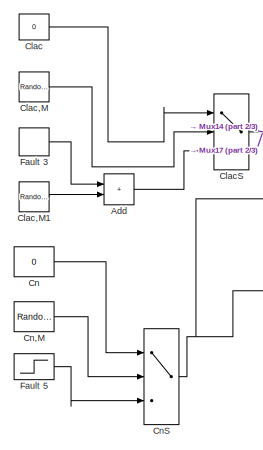
[diagram: root canvas - part 1/3, middle left region]
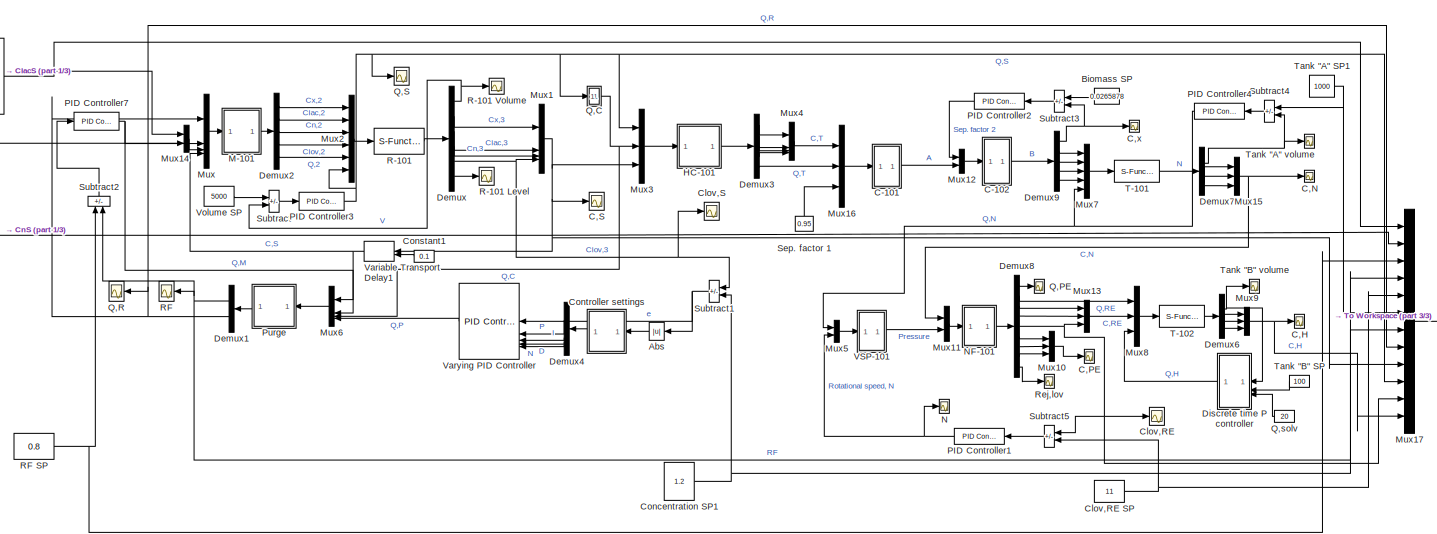
[diagram: root canvas - part 2/3, most of the canvas]
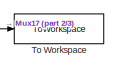
[diagram: root canvas - part 3/3, middle right region]
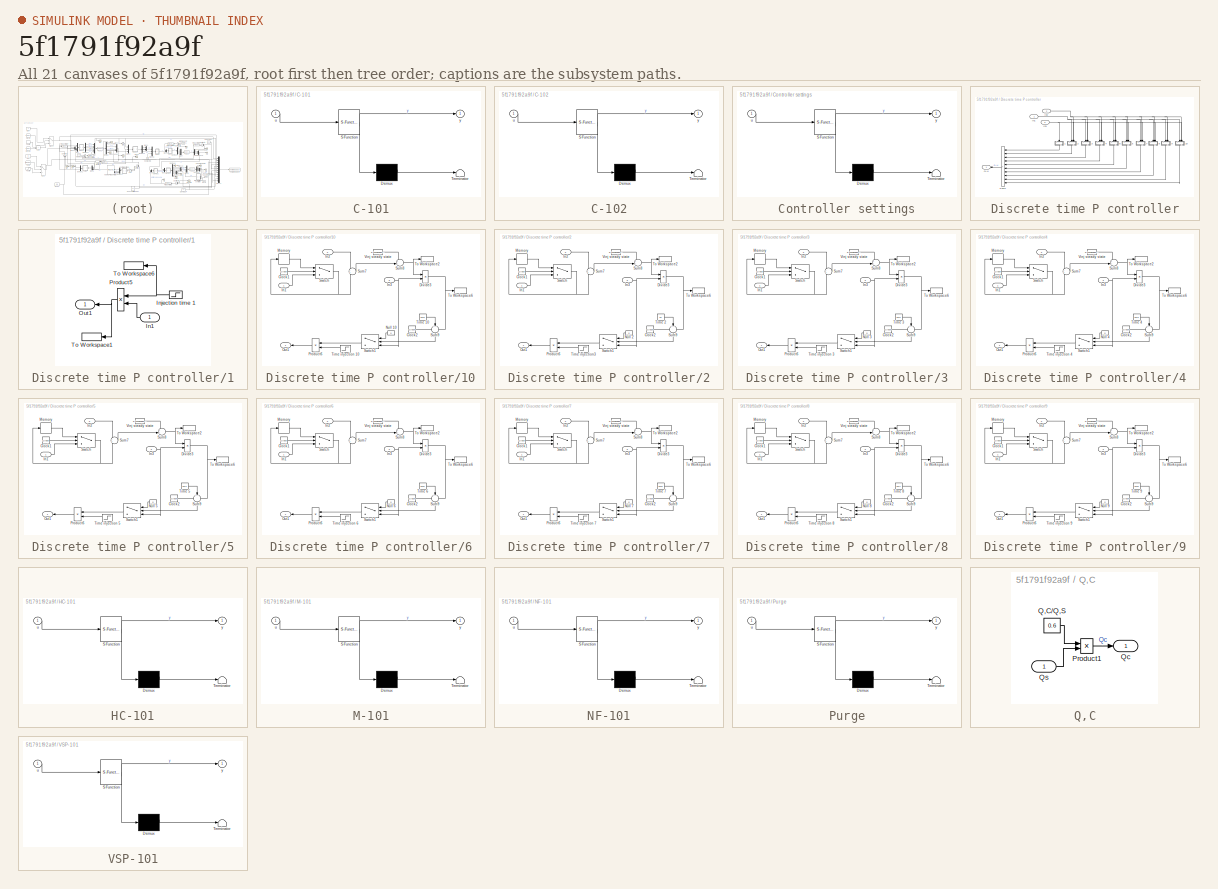
[diagram: thumbnail index - all 21 canvases of the model, root first then tree order]
MODEL slx_5f1791f92a9f
KIND model
CONFIG AbsTol = auto
CONFIG EnableMultiTasking = off
CONFIG FixedStep = auto
CONFIG MaxStep = auto
CONFIG MinStep = auto
CONFIG RelTol = 1e-3
CONFIG SampleTimeConstraint = Unconstrained
CONFIG SolverName = ode45
CONFIG StartTime = 0.0
CONFIG StopTime = 2000
BLOCK [Abs] Abs
  NameLocation = top
  SaturateOnIntegerOverflow = off
BLOCK [Sum] Add
  IconShape = rectangular
BLOCK [Constant] Biomass SP
  NameLocation = top
  Value = 0.0265878
BLOCK [Scope] C,H
  Floating = off
  NumInputPorts = 1
  ScopeSpecificationString = Simulink.scopes.TimeScopeBlockCfg('CurrentConfiguration', extmgr.ConfigurationSet(extmgr.Configuration('Core','General UI',true,'FigureColor',[1 1 1]),extmgr.Configuration('Core','Source UI',true),extmgr.Configuration('Sources','WiredSimulink',true,'DataLoggingVariableName','ScopeData4'),extmgr.Configuration('Visuals','Time Domain',true,'PlotType','Line','SerializedDisplays',{struct('MinYLimReal',...<+1841ch>
BLOCK [Scope] C,N
  Floating = off
  NumInputPorts = 1
  ScopeSpecificationString = Simulink.scopes.TimeScopeBlockCfg('CurrentConfiguration', extmgr.ConfigurationSet(extmgr.Configuration('Core','General UI',true,'FigureColor',[1 1 1]),extmgr.Configuration('Core','Source UI',true),extmgr.Configuration('Sources','WiredSimulink',true,'DataLoggingVariableName','ScopeData1'),extmgr.Configuration('Visuals','Time Domain',true,'SerializedDisplays',{struct('MinYLimReal','-0.50121','MaxYLi...<+1834ch>
BLOCK [Scope] C,PE
  Floating = off
  NumInputPorts = 1
  ScopeSpecificationString = Simulink.scopes.TimeScopeBlockCfg('CurrentConfiguration', extmgr.ConfigurationSet(extmgr.Configuration('Core','General UI',true,'FigureColor',[1 1 1]),extmgr.Configuration('Core','Source UI',true),extmgr.Configuration('Sources','WiredSimulink',true,'DataLoggingVariableName','ScopeData2'),extmgr.Configuration('Visuals','Time Domain',true,'PlotType','Line','SerializedDisplays',{struct('MinYLimReal',...<+1837ch>
BLOCK [Scope] C,S
  Floating = off
  NumInputPorts = 1
  ScopeSpecificationString = Simulink.scopes.TimeScopeBlockCfg('CurrentConfiguration', extmgr.ConfigurationSet(extmgr.Configuration('Core','General UI',true),extmgr.Configuration('Core','Source UI',true),extmgr.Configuration('Sources','WiredSimulink',true,'DataLoggingVariableName','ScopeData1'),extmgr.Configuration('Visuals','Time Domain',true,'SerializedDisplays',{struct('MinYLimReal','-11.9439','MaxYLimReal','119.49509','YL...<+1752ch>
BLOCK [Scope] C,x
  Floating = off
  NumInputPorts = 1
  ScopeSpecificationString = Simulink.scopes.TimeScopeBlockCfg('CurrentConfiguration', extmgr.ConfigurationSet(extmgr.Configuration('Core','General UI',true,'FigureColor',[1 1 1]),extmgr.Configuration('Core','Source UI',true),extmgr.Configuration('Sources','WiredSimulink',true,'DataLoggingVariableName','ScopeData3'),extmgr.Configuration('Visuals','Time Domain',true,'SerializedDisplays',{struct('MinYLimReal','0.025','MaxYLimRe...<+1777ch>
BLOCK [SubSystem] C-101
  ErrorFcn = Stateflow.Translate.translate
  PermitHierarchicalResolution = ExplicitOnly
  SFBlockType = MATLAB Function
  ShowPortLabels = none
  TreatAsAtomicUnit = on
BLOCK [Demux] C-101/ Demux 
  Outputs = 1
BLOCK [S-Function] C-101/ SFunction 
  EnableBusSupport = on
  FunctionName = sf_sfun
  PortCounts = [1 2]
  SFcnIsStateOwnerBlock = off
  SFunctionDeploymentMode = off
  Tag = Stateflow S-Function 2
BLOCK [Terminator] C-101/ Terminator 
BLOCK [Inport] C-101/u
BLOCK [Outport] C-101/y
  VectorParamsAs1DForOutWhenUnconnected = off
BLOCK [SubSystem] C-102
  ErrorFcn = Stateflow.Translate.translate
  PermitHierarchicalResolution = ExplicitOnly
  SFBlockType = MATLAB Function
  ShowPortLabels = none
  TreatAsAtomicUnit = on
BLOCK [Demux] C-102/ Demux 
  Outputs = 1
BLOCK [S-Function] C-102/ SFunction 
  EnableBusSupport = on
  FunctionName = sf_sfun
  PortCounts = [1 2]
  SFcnIsStateOwnerBlock = off
  SFunctionDeploymentMode = off
  Tag = Stateflow S-Function 4
BLOCK [Terminator] C-102/ Terminator 
BLOCK [Inport] C-102/u
BLOCK [Outport] C-102/y
  VectorParamsAs1DForOutWhenUnconnected = off
BLOCK [Constant] Clac
  Value = 0
BLOCK [RandomNumber] Clac,M
  Mean = 20
  SampleTime = 0.1
  Variance = 0.001
BLOCK [RandomNumber] Clac,M1
  Mean = 20
  SampleTime = 0.1
  Variance = 0.001
BLOCK [MultiPortSwitch] ClacS 
  DataPortOrder = Zero-based contiguous
  InputSameDT = off
  Inputs = 2
  SaturateOnIntegerOverflow = off
  zeroidx = on
BLOCK [Scope] Clov,RE
  Floating = off
  NumInputPorts = 1
  ScopeSpecificationString = Simulink.scopes.TimeScopeBlockCfg('CurrentConfiguration', extmgr.ConfigurationSet(extmgr.Configuration('Core','General UI',true,'FigureColor',[1 1 1]),extmgr.Configuration('Core','Source UI',true),extmgr.Configuration('Sources','WiredSimulink',true,'DataLoggingVariableName','ScopeData5'),extmgr.Configuration('Visuals','Time Domain',true,'SerializedDisplays',{struct('MinYLimReal','10.4773','MaxYLim...<+1822ch>
BLOCK [Constant] Clov,RE SP
  Value = 11
BLOCK [Scope] Clov,S
  Floating = off
  NumInputPorts = 1
  ScopeSpecificationString = Simulink.scopes.TimeScopeBlockCfg('CurrentConfiguration', extmgr.ConfigurationSet(extmgr.Configuration('Core','General UI',true,'FigureColor',[1 1 1]),extmgr.Configuration('Core','Source UI',true),extmgr.Configuration('Sources','WiredSimulink',true,'DataLoggingVariableName','ScopeData1'),extmgr.Configuration('Visuals','Time Domain',true,'PlotType','Line','SerializedDisplays',{struct('MinYLimReal',...<+1935ch>
BLOCK [Constant] Cn
  Value = 0
BLOCK [RandomNumber] Cn,M
  Mean = 4
  SampleTime = 0.1
  Variance = 0.001
BLOCK [MultiPortSwitch] CnS
  DataPortOrder = Zero-based contiguous
  InputSameDT = off
  Inputs = 2
  SaturateOnIntegerOverflow = off
  zeroidx = on
BLOCK [Constant] Concentration SP1
  Value = 1.2
BLOCK [Constant] Constant1
  NameLocation = top
  Value = 0.1
BLOCK [SubSystem] Controller settings
  ErrorFcn = Stateflow.Translate.translate
  PermitHierarchicalResolution = ExplicitOnly
  SFBlockType = MATLAB Function
  ShowPortLabels = none
  TreatAsAtomicUnit = on
BLOCK [Demux] Controller settings/ Demux 
  Outputs = 1
BLOCK [S-Function] Controller settings/ SFunction 
  EnableBusSupport = on
  FunctionName = sf_sfun
  PortCounts = [1 2]
  SFcnIsStateOwnerBlock = off
  SFunctionDeploymentMode = off
  Tag = Stateflow S-Function 13
BLOCK [Terminator] Controller settings/ Terminator 
BLOCK [Inport] Controller settings/u
BLOCK [Outport] Controller settings/y
  VectorParamsAs1DForOutWhenUnconnected = off
BLOCK [Demux] Demux
  Outputs = 6
BLOCK [Demux] Demux1
  NameLocation = top
  Outputs = 2
BLOCK [Demux] Demux2
  Outputs = 5
BLOCK [Demux] Demux3
  Outputs = 5
BLOCK [Demux] Demux4
  NameLocation = top
BLOCK [Demux] Demux6
BLOCK [Demux] Demux7
BLOCK [Demux] Demux8
  Outputs = 9
BLOCK [Demux] Demux9
  Outputs = 5
BLOCK [SubSystem] Discrete time P controller
  ShowPortLabels = none
BLOCK [SubSystem] Discrete time P controller/1
  NameLocation = left
  ShowPortLabels = none
BLOCK [Inport] Discrete time P controller/1/In1
BLOCK [Step] Discrete time P controller/1/Injection time 1
  After = 0
  Before = 1
  SampleTime = 0
  Time = (5.1313509526065/20)*6
BLOCK [Outport] Discrete time P controller/1/Out1
  VectorParamsAs1DForOutWhenUnconnected = off
BLOCK [Product] Discrete time P controller/1/Product5
  NameLocation = top
BLOCK [ToWorkspace] Discrete time P controller/1/To Workspace1
  FixptAsFi = on
  MaxDataPoints = inf
  NameLocation = top
  SampleTime = -1
  SaveFormat = Timeseries
  VariableName = V_inj_1
BLOCK [ToWorkspace] Discrete time P controller/1/To Workspace6
  FixptAsFi = on
  MaxDataPoints = inf
  NameLocation = top
  SampleTime = -1
  SaveFormat = Timeseries
  VariableName = t_inj_1
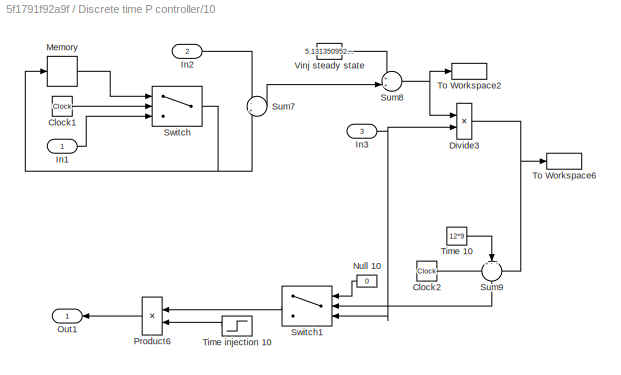
BLOCK [SubSystem] Discrete time P controller/10
  NameLocation = left
  ShowPortLabels = none
BLOCK [Clock] Discrete time P controller/10/Clock1
BLOCK [Clock] Discrete time P controller/10/Clock2
BLOCK [Product] Discrete time P controller/10/Divide3
  Inputs = */
BLOCK [Inport] Discrete time P controller/10/In1
BLOCK [Inport] Discrete time P controller/10/In2
  Port = 2
BLOCK [Inport] Discrete time P controller/10/In3
  Port = 3
BLOCK [Memory] Discrete time P controller/10/Memory
BLOCK [Constant] Discrete time P controller/10/Null 10
  NameLocation = top
  Value = 0
BLOCK [Outport] Discrete time P controller/10/Out1
  VectorParamsAs1DForOutWhenUnconnected = off
BLOCK [Product] Discrete time P controller/10/Product6
  NameLocation = top
BLOCK [Sum] Discrete time P controller/10/Sum7
  Inputs = -+
BLOCK [Sum] Discrete time P controller/10/Sum8
BLOCK [Sum] Discrete time P controller/10/Sum9
  Inputs = +--
  NameLocation = left
BLOCK [Switch] Discrete time P controller/10/Switch
  InputSameDT = off
  SaturateOnIntegerOverflow = off
  Threshold = 12*9
BLOCK [Switch] Discrete time P controller/10/Switch1
  InputSameDT = off
  NameLocation = top
  SaturateOnIntegerOverflow = off
BLOCK [Constant] Discrete time P controller/10/Time 10
  Value = 12*9
BLOCK [Step] Discrete time P controller/10/Time injection 10
  SampleTime = 0
  Time = 12*9
BLOCK [ToWorkspace] Discrete time P controller/10/To Workspace2
  FixptAsFi = on
  MaxDataPoints = inf
  SampleTime = -1
  SaveFormat = Timeseries
  VariableName = V_inj_10
BLOCK [ToWorkspace] Discrete time P controller/10/To Workspace6
  FixptAsFi = on
  MaxDataPoints = inf
  SampleTime = -1
  SaveFormat = Timeseries
  VariableName = t_inj_10
BLOCK [Constant] Discrete time P controller/10/Vinj steady state
  NameLocation = top
  Value = 5.1313509526065*6
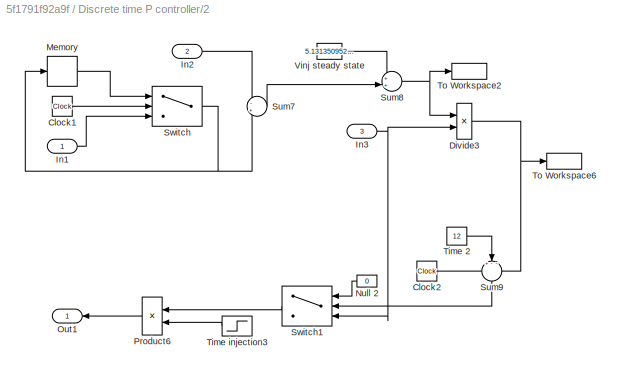
BLOCK [SubSystem] Discrete time P controller/2
  NameLocation = left
  ShowPortLabels = none
BLOCK [Clock] Discrete time P controller/2/Clock1
BLOCK [Clock] Discrete time P controller/2/Clock2
BLOCK [Product] Discrete time P controller/2/Divide3
  Inputs = */
BLOCK [Inport] Discrete time P controller/2/In1
BLOCK [Inport] Discrete time P controller/2/In2
  Port = 2
BLOCK [Inport] Discrete time P controller/2/In3
  Port = 3
BLOCK [Memory] Discrete time P controller/2/Memory
BLOCK [Constant] Discrete time P controller/2/Null 2
  NameLocation = top
  Value = 0
BLOCK [Outport] Discrete time P controller/2/Out1
  VectorParamsAs1DForOutWhenUnconnected = off
BLOCK [Product] Discrete time P controller/2/Product6
  NameLocation = top
BLOCK [Sum] Discrete time P controller/2/Sum7
  Inputs = -+
BLOCK [Sum] Discrete time P controller/2/Sum8
BLOCK [Sum] Discrete time P controller/2/Sum9
  Inputs = +--
  NameLocation = left
BLOCK [Switch] Discrete time P controller/2/Switch
  InputSameDT = off
  SaturateOnIntegerOverflow = off
  Threshold = 12
BLOCK [Switch] Discrete time P controller/2/Switch1
  InputSameDT = off
  NameLocation = top
  SaturateOnIntegerOverflow = off
BLOCK [Constant] Discrete time P controller/2/Time 2
  Value = 12
BLOCK [Step] Discrete time P controller/2/Time injection3
  SampleTime = 0
  Time = 12
BLOCK [ToWorkspace] Discrete time P controller/2/To Workspace2
  FixptAsFi = on
  MaxDataPoints = inf
  SampleTime = -1
  SaveFormat = Timeseries
  VariableName = V_inj_2
BLOCK [ToWorkspace] Discrete time P controller/2/To Workspace6
  FixptAsFi = on
  MaxDataPoints = inf
  SampleTime = -1
  SaveFormat = Timeseries
  VariableName = t_inj_2
BLOCK [Constant] Discrete time P controller/2/Vinj steady state
  NameLocation = top
  Value = 5.1313509526065*6
BLOCK [SubSystem] Discrete time P controller/3
  NameLocation = left
  ShowPortLabels = none
BLOCK [Clock] Discrete time P controller/3/Clock1
BLOCK [Clock] Discrete time P controller/3/Clock2
BLOCK [Product] Discrete time P controller/3/Divide3
  Inputs = */
BLOCK [Inport] Discrete time P controller/3/In1
BLOCK [Inport] Discrete time P controller/3/In2
  Port = 2
BLOCK [Inport] Discrete time P controller/3/In3
  Port = 3
BLOCK [Memory] Discrete time P controller/3/Memory
BLOCK [Constant] Discrete time P controller/3/Null 3
  NameLocation = top
  Value = 0
BLOCK [Outport] Discrete time P controller/3/Out1
  VectorParamsAs1DForOutWhenUnconnected = off
BLOCK [Product] Discrete time P controller/3/Product6
  NameLocation = top
BLOCK [Sum] Discrete time P controller/3/Sum7
  Inputs = -+
BLOCK [Sum] Discrete time P controller/3/Sum8
BLOCK [Sum] Discrete time P controller/3/Sum9
  Inputs = +--
  NameLocation = left
BLOCK [Switch] Discrete time P controller/3/Switch
  InputSameDT = off
  SaturateOnIntegerOverflow = off
  Threshold = 12*2
BLOCK [Switch] Discrete time P controller/3/Switch1
  InputSameDT = off
  NameLocation = top
  SaturateOnIntegerOverflow = off
BLOCK [Constant] Discrete time P controller/3/Time 3
  Value = 12*2
BLOCK [Step] Discrete time P controller/3/Time injection 3
  SampleTime = 0
  Time = 12*2
BLOCK [ToWorkspace] Discrete time P controller/3/To Workspace2
  FixptAsFi = on
  MaxDataPoints = inf
  SampleTime = -1
  SaveFormat = Timeseries
  VariableName = V_inj_3
BLOCK [ToWorkspace] Discrete time P controller/3/To Workspace6
  FixptAsFi = on
  MaxDataPoints = inf
  SampleTime = -1
  SaveFormat = Timeseries
  VariableName = t_inj_3
BLOCK [Constant] Discrete time P controller/3/Vinj steady state
  NameLocation = top
  Value = 5.1313509526065*6
BLOCK [SubSystem] Discrete time P controller/4
  NameLocation = left
  ShowPortLabels = none
BLOCK [Clock] Discrete time P controller/4/Clock1
BLOCK [Clock] Discrete time P controller/4/Clock2
BLOCK [Product] Discrete time P controller/4/Divide3
  Inputs = */
BLOCK [Inport] Discrete time P controller/4/In1
BLOCK [Inport] Discrete time P controller/4/In2
  Port = 2
BLOCK [Inport] Discrete time P controller/4/In3
  Port = 3
BLOCK [Memory] Discrete time P controller/4/Memory
BLOCK [Constant] Discrete time P controller/4/Null 4
  NameLocation = top
  Value = 0
BLOCK [Outport] Discrete time P controller/4/Out1
  VectorParamsAs1DForOutWhenUnconnected = off
BLOCK [Product] Discrete time P controller/4/Product6
  NameLocation = top
BLOCK [Sum] Discrete time P controller/4/Sum7
  Inputs = -+
BLOCK [Sum] Discrete time P controller/4/Sum8
BLOCK [Sum] Discrete time P controller/4/Sum9
  Inputs = +--
  NameLocation = left
BLOCK [Switch] Discrete time P controller/4/Switch
  InputSameDT = off
  SaturateOnIntegerOverflow = off
  Threshold = 12*3
BLOCK [Switch] Discrete time P controller/4/Switch1
  InputSameDT = off
  NameLocation = top
  SaturateOnIntegerOverflow = off
BLOCK [Constant] Discrete time P controller/4/Time 4
  Value = 12*3
BLOCK [Step] Discrete time P controller/4/Time injection 4
  SampleTime = 0
  Time = 12*3
BLOCK [ToWorkspace] Discrete time P controller/4/To Workspace2
  FixptAsFi = on
  MaxDataPoints = inf
  SampleTime = -1
  SaveFormat = Timeseries
  VariableName = V_inj_4
BLOCK [ToWorkspace] Discrete time P controller/4/To Workspace6
  FixptAsFi = on
  MaxDataPoints = inf
  SampleTime = -1
  SaveFormat = Timeseries
  VariableName = t_inj_4
BLOCK [Constant] Discrete time P controller/4/Vinj steady state
  NameLocation = top
  Value = 5.1313509526065*6
BLOCK [SubSystem] Discrete time P controller/5
  NameLocation = left
  ShowPortLabels = none
BLOCK [Clock] Discrete time P controller/5/Clock1
BLOCK [Clock] Discrete time P controller/5/Clock2
BLOCK [Product] Discrete time P controller/5/Divide3
  Inputs = */
BLOCK [Inport] Discrete time P controller/5/In1
BLOCK [Inport] Discrete time P controller/5/In2
  Port = 2
BLOCK [Inport] Discrete time P controller/5/In3
  Port = 3
BLOCK [Memory] Discrete time P controller/5/Memory
BLOCK [Constant] Discrete time P controller/5/Null 5
  NameLocation = top
  Value = 0
BLOCK [Outport] Discrete time P controller/5/Out1
  VectorParamsAs1DForOutWhenUnconnected = off
BLOCK [Product] Discrete time P controller/5/Product6
  NameLocation = top
BLOCK [Sum] Discrete time P controller/5/Sum7
  Inputs = -+
BLOCK [Sum] Discrete time P controller/5/Sum8
BLOCK [Sum] Discrete time P controller/5/Sum9
  Inputs = +--
  NameLocation = left
BLOCK [Switch] Discrete time P controller/5/Switch
  InputSameDT = off
  SaturateOnIntegerOverflow = off
  Threshold = 12*4
BLOCK [Switch] Discrete time P controller/5/Switch1
  InputSameDT = off
  NameLocation = top
  SaturateOnIntegerOverflow = off
BLOCK [Constant] Discrete time P controller/5/Time 5
  Value = 12*4
BLOCK [Step] Discrete time P controller/5/Time injection 5
  SampleTime = 0
  Time = 12*4
BLOCK [ToWorkspace] Discrete time P controller/5/To Workspace2
  FixptAsFi = on
  MaxDataPoints = inf
  SampleTime = -1
  SaveFormat = Timeseries
  VariableName = V_inj_5
BLOCK [ToWorkspace] Discrete time P controller/5/To Workspace6
  FixptAsFi = on
  MaxDataPoints = inf
  SampleTime = -1
  SaveFormat = Timeseries
  VariableName = t_inj_5
BLOCK [Constant] Discrete time P controller/5/Vinj steady state
  NameLocation = top
  Value = 5.1313509526065*6
BLOCK [SubSystem] Discrete time P controller/6
  NameLocation = left
  ShowPortLabels = none
BLOCK [Clock] Discrete time P controller/6/Clock1
BLOCK [Clock] Discrete time P controller/6/Clock2
BLOCK [Product] Discrete time P controller/6/Divide3
  Inputs = */
BLOCK [Inport] Discrete time P controller/6/In1
BLOCK [Inport] Discrete time P controller/6/In2
  Port = 2
BLOCK [Inport] Discrete time P controller/6/In3
  Port = 3
BLOCK [Memory] Discrete time P controller/6/Memory
BLOCK [Constant] Discrete time P controller/6/Null 6
  NameLocation = top
  Value = 0
BLOCK [Outport] Discrete time P controller/6/Out1
  VectorParamsAs1DForOutWhenUnconnected = off
BLOCK [Product] Discrete time P controller/6/Product6
  NameLocation = top
BLOCK [Sum] Discrete time P controller/6/Sum7
  Inputs = -+
BLOCK [Sum] Discrete time P controller/6/Sum8
BLOCK [Sum] Discrete time P controller/6/Sum9
  Inputs = +--
  NameLocation = left
BLOCK [Switch] Discrete time P controller/6/Switch
  InputSameDT = off
  SaturateOnIntegerOverflow = off
  Threshold = 12*5
BLOCK [Switch] Discrete time P controller/6/Switch1
  InputSameDT = off
  NameLocation = top
  SaturateOnIntegerOverflow = off
BLOCK [Constant] Discrete time P controller/6/Time 6
  Value = 12*5
BLOCK [Step] Discrete time P controller/6/Time injection 6
  SampleTime = 0
  Time = 12*5
BLOCK [ToWorkspace] Discrete time P controller/6/To Workspace2
  FixptAsFi = on
  MaxDataPoints = inf
  SampleTime = -1
  SaveFormat = Timeseries
  VariableName = V_inj_6
BLOCK [ToWorkspace] Discrete time P controller/6/To Workspace6
  FixptAsFi = on
  MaxDataPoints = inf
  SampleTime = -1
  SaveFormat = Timeseries
  VariableName = t_inj_6
BLOCK [Constant] Discrete time P controller/6/Vinj steady state
  NameLocation = top
  Value = 5.1313509526065*6
BLOCK [SubSystem] Discrete time P controller/7
  NameLocation = left
  ShowPortLabels = none
BLOCK [Clock] Discrete time P controller/7/Clock1
BLOCK [Clock] Discrete time P controller/7/Clock2
BLOCK [Product] Discrete time P controller/7/Divide3
  Inputs = */
BLOCK [Inport] Discrete time P controller/7/In1
BLOCK [Inport] Discrete time P controller/7/In2
  Port = 2
BLOCK [Inport] Discrete time P controller/7/In3
  Port = 3
BLOCK [Memory] Discrete time P controller/7/Memory
BLOCK [Constant] Discrete time P controller/7/Null 7
  NameLocation = top
  Value = 0
BLOCK [Outport] Discrete time P controller/7/Out1
  VectorParamsAs1DForOutWhenUnconnected = off
BLOCK [Product] Discrete time P controller/7/Product6
  NameLocation = top
BLOCK [Sum] Discrete time P controller/7/Sum7
  Inputs = -+
BLOCK [Sum] Discrete time P controller/7/Sum8
BLOCK [Sum] Discrete time P controller/7/Sum9
  Inputs = +--
  NameLocation = left
BLOCK [Switch] Discrete time P controller/7/Switch
  InputSameDT = off
  SaturateOnIntegerOverflow = off
  Threshold = 12*6
BLOCK [Switch] Discrete time P controller/7/Switch1
  InputSameDT = off
  NameLocation = top
  SaturateOnIntegerOverflow = off
BLOCK [Constant] Discrete time P controller/7/Time 7
  Value = 12*6
BLOCK [Step] Discrete time P controller/7/Time injection 7
  SampleTime = 0
  Time = 12*6
BLOCK [ToWorkspace] Discrete time P controller/7/To Workspace2
  FixptAsFi = on
  MaxDataPoints = inf
  SampleTime = -1
  SaveFormat = Timeseries
  VariableName = V_inj_7
BLOCK [ToWorkspace] Discrete time P controller/7/To Workspace6
  FixptAsFi = on
  MaxDataPoints = inf
  SampleTime = -1
  SaveFormat = Timeseries
  VariableName = t_inj_7
BLOCK [Constant] Discrete time P controller/7/Vinj steady state
  NameLocation = top
  Value = 5.1313509526065*6
BLOCK [SubSystem] Discrete time P controller/8
  NameLocation = left
  ShowPortLabels = none
BLOCK [Clock] Discrete time P controller/8/Clock1
BLOCK [Clock] Discrete time P controller/8/Clock2
BLOCK [Product] Discrete time P controller/8/Divide3
  Inputs = */
BLOCK [Inport] Discrete time P controller/8/In1
BLOCK [Inport] Discrete time P controller/8/In2
  Port = 2
BLOCK [Inport] Discrete time P controller/8/In3
  Port = 3
BLOCK [Memory] Discrete time P controller/8/Memory
BLOCK [Constant] Discrete time P controller/8/Null 8
  NameLocation = top
  Value = 0
BLOCK [Outport] Discrete time P controller/8/Out1
  VectorParamsAs1DForOutWhenUnconnected = off
BLOCK [Product] Discrete time P controller/8/Product6
  NameLocation = top
BLOCK [Sum] Discrete time P controller/8/Sum7
  Inputs = -+
BLOCK [Sum] Discrete time P controller/8/Sum8
BLOCK [Sum] Discrete time P controller/8/Sum9
  Inputs = +--
  NameLocation = left
BLOCK [Switch] Discrete time P controller/8/Switch
  InputSameDT = off
  SaturateOnIntegerOverflow = off
  Threshold = 12*7
BLOCK [Switch] Discrete time P controller/8/Switch1
  InputSameDT = off
  NameLocation = top
  SaturateOnIntegerOverflow = off
BLOCK [Constant] Discrete time P controller/8/Time 8
  Value = 12*7
BLOCK [Step] Discrete time P controller/8/Time injection 8
  SampleTime = 0
  Time = 12*7
BLOCK [ToWorkspace] Discrete time P controller/8/To Workspace2
  FixptAsFi = on
  MaxDataPoints = inf
  SampleTime = -1
  SaveFormat = Timeseries
  VariableName = V_inj_8
BLOCK [ToWorkspace] Discrete time P controller/8/To Workspace6
  FixptAsFi = on
  MaxDataPoints = inf
  SampleTime = -1
  SaveFormat = Timeseries
  VariableName = t_inj_8
BLOCK [Constant] Discrete time P controller/8/Vinj steady state
  NameLocation = top
  Value = 5.1313509526065*6
BLOCK [SubSystem] Discrete time P controller/9
  NameLocation = left
  ShowPortLabels = none
BLOCK [Clock] Discrete time P controller/9/Clock1
BLOCK [Clock] Discrete time P controller/9/Clock2
BLOCK [Product] Discrete time P controller/9/Divide3
  Inputs = */
BLOCK [Inport] Discrete time P controller/9/In1
BLOCK [Inport] Discrete time P controller/9/In2
  Port = 2
BLOCK [Inport] Discrete time P controller/9/In3
  Port = 3
BLOCK [Memory] Discrete time P controller/9/Memory
BLOCK [Constant] Discrete time P controller/9/Null 9
  NameLocation = top
  Value = 0
BLOCK [Outport] Discrete time P controller/9/Out1
  VectorParamsAs1DForOutWhenUnconnected = off
BLOCK [Product] Discrete time P controller/9/Product6
  NameLocation = top
BLOCK [Sum] Discrete time P controller/9/Sum7
  Inputs = -+
BLOCK [Sum] Discrete time P controller/9/Sum8
BLOCK [Sum] Discrete time P controller/9/Sum9
  Inputs = +--
  NameLocation = left
BLOCK [Switch] Discrete time P controller/9/Switch
  InputSameDT = off
  SaturateOnIntegerOverflow = off
  Threshold = 12*8
BLOCK [Switch] Discrete time P controller/9/Switch1
  InputSameDT = off
  NameLocation = top
  SaturateOnIntegerOverflow = off
BLOCK [Constant] Discrete time P controller/9/Time 9
  Value = 12*8
BLOCK [Step] Discrete time P controller/9/Time injection 9
  SampleTime = 0
  Time = 12*8
BLOCK [ToWorkspace] Discrete time P controller/9/To Workspace2
  FixptAsFi = on
  MaxDataPoints = inf
  SampleTime = -1
  SaveFormat = Timeseries
  VariableName = V_inj_9
BLOCK [ToWorkspace] Discrete time P controller/9/To Workspace6
  FixptAsFi = on
  MaxDataPoints = inf
  SampleTime = -1
  SaveFormat = Timeseries
  VariableName = t_inj_9
BLOCK [Constant] Discrete time P controller/9/Vinj steady state
  NameLocation = top
  Value = 5.1313509526065*6
BLOCK [Inport] Discrete time P controller/In1
BLOCK [Inport] Discrete time P controller/In2
  Port = 2
BLOCK [Inport] Discrete time P controller/In3
  Port = 3
BLOCK [Outport] Discrete time P controller/Q,H
  NameLocation = top
  VectorParamsAs1DForOutWhenUnconnected = off
BLOCK [Sum] Discrete time P controller/Sum1
  IconShape = rectangular
  Inputs = ++++++++++
  NameLocation = top
BLOCK [DiscretePulseGenerator] Fault 3
  Amplitude = 2
  Period = 150
  PulseWidth = 100
  SampleTime = 2
BLOCK [Step] Fault 5
  After = 4.8
  Before = 4
  SampleTime = 0
  Time = 10.1
BLOCK [SubSystem] HC-101
  ErrorFcn = Stateflow.Translate.translate
  PermitHierarchicalResolution = ExplicitOnly
  SFBlockType = MATLAB Function
  ShowPortLabels = none
  TreatAsAtomicUnit = on
BLOCK [Demux] HC-101/ Demux 
  Outputs = 1
BLOCK [S-Function] HC-101/ SFunction 
  EnableBusSupport = on
  FunctionName = sf_sfun
  PortCounts = [1 2]
  SFcnIsStateOwnerBlock = off
  SFunctionDeploymentMode = off
  Tag = Stateflow S-Function 9
BLOCK [Terminator] HC-101/ Terminator 
BLOCK [Inport] HC-101/u
BLOCK [Outport] HC-101/y
  VectorParamsAs1DForOutWhenUnconnected = off
BLOCK [SubSystem] M-101
  ErrorFcn = Stateflow.Translate.translate
  PermitHierarchicalResolution = ExplicitOnly
  SFBlockType = MATLAB Function
  ShowPortLabels = none
  TreatAsAtomicUnit = on
BLOCK [Demux] M-101/ Demux 
  Outputs = 1
BLOCK [S-Function] M-101/ SFunction 
  EnableBusSupport = on
  FunctionName = sf_sfun
  PortCounts = [1 2]
  SFcnIsStateOwnerBlock = off
  SFunctionDeploymentMode = off
  Tag = Stateflow S-Function 1
BLOCK [Terminator] M-101/ Terminator 
BLOCK [Inport] M-101/u
BLOCK [Outport] M-101/y
  VectorParamsAs1DForOutWhenUnconnected = off
BLOCK [Mux] Mux
  DisplayOption = bar
BLOCK [Mux] Mux1
  DisplayOption = bar
BLOCK [Mux] Mux10
  DisplayOption = bar
  Inputs = 3
BLOCK [Mux] Mux11
  DisplayOption = bar
  Inputs = 2
BLOCK [Mux] Mux12
  DisplayOption = bar
  Inputs = 2
BLOCK [Mux] Mux13
  DisplayOption = bar
  Inputs = 3
BLOCK [Mux] Mux14
  DisplayOption = bar
  Inputs = 2
BLOCK [Mux] Mux15
  DisplayOption = bar
  Inputs = 3
BLOCK [Mux] Mux16
  DisplayOption = bar
  Inputs = 3
BLOCK [Mux] Mux17
  DisplayOption = bar
  Inputs = 12
  NameLocation = right
BLOCK [Mux] Mux2
  DisplayOption = bar
  Inputs = 6
BLOCK [Mux] Mux3
  DisplayOption = bar
  Inputs = 3
BLOCK [Mux] Mux4
  DisplayOption = bar
BLOCK [Mux] Mux5
  DisplayOption = bar
  Inputs = 2
BLOCK [Mux] Mux6
  DisplayOption = bar
  NameLocation = top
BLOCK [Mux] Mux7
  DisplayOption = bar
  Inputs = 5
BLOCK [Mux] Mux8
  DisplayOption = bar
  Inputs = 3
BLOCK [Mux] Mux9
  DisplayOption = bar
  Inputs = 3
BLOCK [Scope] N
  Floating = off
  NumInputPorts = 1
  ScopeSpecificationString = Simulink.scopes.TimeScopeBlockCfg('CurrentConfiguration', extmgr.ConfigurationSet(extmgr.Configuration('Core','General UI',true,'FigureColor',[1 1 1]),extmgr.Configuration('Core','Source UI',true),extmgr.Configuration('Sources','WiredSimulink',true,'DataLoggingVariableName','ScopeData6'),extmgr.Configuration('Visuals','Time Domain',true,'SerializedDisplays',{struct('MinYLimReal','2705.2959','MaxYL...<+1819ch>
BLOCK [SubSystem] NF-101
  ErrorFcn = Stateflow.Translate.translate
  PermitHierarchicalResolution = ExplicitOnly
  SFBlockType = MATLAB Function
  ShowPortLabels = none
  TreatAsAtomicUnit = on
BLOCK [Demux] NF-101/ Demux 
  Outputs = 1
BLOCK [S-Function] NF-101/ SFunction 
  EnableBusSupport = on
  FunctionName = sf_sfun
  PortCounts = [1 2]
  SFcnIsStateOwnerBlock = off
  SFunctionDeploymentMode = off
  Tag = Stateflow S-Function 8
BLOCK [Terminator] NF-101/ Terminator 
BLOCK [Inport] NF-101/u
BLOCK [Outport] NF-101/y
  VectorParamsAs1DForOutWhenUnconnected = off
BLOCK [Reference] PID Controller1  REF=slpidlib/PID Controller
  NameLocation = top
  SourceBlock = slpidlib/PID Controller
  SourceType = PID 1dof
BLOCK [Reference] PID Controller2  REF=slpidlib/PID Controller
  NameLocation = top
  SourceBlock = slpidlib/PID Controller
  SourceType = PID 1dof
BLOCK [Reference] PID Controller3  REF=slpidlib/PID Controller
  SourceBlock = slpidlib/PID Controller
  SourceType = PID 1dof
BLOCK [Reference] PID Controller4  REF=slpidlib/PID Controller
  NameLocation = top
  SourceBlock = slpidlib/PID Controller
  SourceType = PID 1dof
BLOCK [Reference] PID Controller7  REF=slpidlib/PID Controller
  SourceBlock = slpidlib/PID Controller
  SourceType = PID 1dof
BLOCK [SubSystem] Purge
  ErrorFcn = Stateflow.Translate.translate
  PermitHierarchicalResolution = ExplicitOnly
  SFBlockType = MATLAB Function
  ShowPortLabels = none
  TreatAsAtomicUnit = on
BLOCK [Demux] Purge/ Demux 
  Outputs = 1
BLOCK [S-Function] Purge/ SFunction 
  EnableBusSupport = on
  FunctionName = sf_sfun
  PortCounts = [1 2]
  SFcnIsStateOwnerBlock = off
  SFunctionDeploymentMode = off
  Tag = Stateflow S-Function 3
BLOCK [Terminator] Purge/ Terminator 
BLOCK [Inport] Purge/u
BLOCK [Outport] Purge/y
  VectorParamsAs1DForOutWhenUnconnected = off
BLOCK [SubSystem] Q,C
  ShowPortLabels = none
BLOCK [Product] Q,C/Product1
BLOCK [Constant] Q,C/Q,C//Q,S
  Value = 0.6
BLOCK [Outport] Q,C/Qc
  VectorParamsAs1DForOutWhenUnconnected = off
BLOCK [Inport] Q,C/Qs
BLOCK [Scope] Q,PE
  Floating = off
  NameLocation = top
  NumInputPorts = 1
  ScopeSpecificationString = Simulink.scopes.TimeScopeBlockCfg('CurrentConfiguration', extmgr.ConfigurationSet(extmgr.Configuration('Core','General UI',true,'FigureColor',[1 1 1]),extmgr.Configuration('Core','Source UI',true),extmgr.Configuration('Sources','WiredSimulink',true,'DataLoggingVariableName','ScopeData7'),extmgr.Configuration('Visuals','Time Domain',true,'SerializedDisplays',{struct('MinYLimReal','13.06755','MaxYLi...<+1875ch>
BLOCK [Scope] Q,R
  Floating = off
  NumInputPorts = 1
  ScopeSpecificationString = Simulink.scopes.TimeScopeBlockCfg('CurrentConfiguration', extmgr.ConfigurationSet(extmgr.Configuration('Core','General UI',true),extmgr.Configuration('Core','Source UI',true),extmgr.Configuration('Sources','WiredSimulink',true,'DataLoggingVariableName','ScopeData3'),extmgr.Configuration('Visuals','Time Domain',true,'SerializedDisplays',{struct('MinYLimReal','18.48136','MaxYLimReal','38.48136','YLa...<+1470ch>
BLOCK [Scope] Q,S
  Floating = off
  NumInputPorts = 1
  ScopeSpecificationString = Simulink.scopes.TimeScopeBlockCfg('CurrentConfiguration', extmgr.ConfigurationSet(extmgr.Configuration('Core','General UI',true),extmgr.Configuration('Core','Source UI',true),extmgr.Configuration('Sources','WiredSimulink',true,'DataLoggingVariableName','ScopeData1'),extmgr.Configuration('Visuals','Time Domain',true,'SerializedDisplays',{struct('MinYLimReal','63.00052','MaxYLimReal','73.82585','YLa...<+1712ch>
BLOCK [Constant] Q,solv
  Value = 20
BLOCK [S-Function] R-101
  EnableBusSupport = off
  FunctionName = CSTR
  SFcnIsStateOwnerBlock = off
  SFunctionDeploymentMode = off
BLOCK [Scope] R-101 Level
  Floating = off
  NumInputPorts = 1
  ScopeSpecificationString = Simulink.scopes.TimeScopeBlockCfg('CurrentConfiguration', extmgr.ConfigurationSet(extmgr.Configuration('Core','General UI',true),extmgr.Configuration('Core','Source UI',true),extmgr.Configuration('Sources','WiredSimulink',true,'DataLoggingVariableName','ScopeData2'),extmgr.Configuration('Visuals','Time Domain',true,'SerializedDisplays',{struct('MinYLimReal','7.85','MaxYLimReal','7.87','YLabelReal'...<+1687ch>
BLOCK [Scope] R-101 Volume
  Floating = off
  NameLocation = top
  NumInputPorts = 1
  ScopeSpecificationString = Simulink.scopes.TimeScopeBlockCfg('CurrentConfiguration', extmgr.ConfigurationSet(extmgr.Configuration('Core','General UI',true),extmgr.Configuration('Core','Source UI',true),extmgr.Configuration('Sources','WiredSimulink',true,'DataLoggingVariableName','ScopeData1'),extmgr.Configuration('Visuals','Time Domain',true,'PlotType','Line','SerializedDisplays',{struct('MinYLimReal','4998.93387','MaxYLimR...<+1835ch>
BLOCK [Scope] RF
  Floating = off
  NumInputPorts = 1
  ScopeSpecificationString = Simulink.scopes.TimeScopeBlockCfg('CurrentConfiguration', extmgr.ConfigurationSet(extmgr.Configuration('Core','General UI',true),extmgr.Configuration('Core','Source UI',true),extmgr.Configuration('Sources','WiredSimulink',true,'DataLoggingVariableName','ScopeData1'),extmgr.Configuration('Visuals','Time Domain',true,'PlotType','Line','SerializedDisplays',{struct('MinYLimReal','0.7','MaxYLimReal','0...<+1626ch>
BLOCK [Constant] RF SP
  Value = 0.8
BLOCK [Scope] Rej,lov
  Floating = off
  NumInputPorts = 1
  ScopeSpecificationString = Simulink.scopes.TimeScopeBlockCfg('CurrentConfiguration', extmgr.ConfigurationSet(extmgr.Configuration('Core','General UI',true,'FigureColor',[1 1 1]),extmgr.Configuration('Core','Source UI',true),extmgr.Configuration('Sources','WiredSimulink',true,'DataLoggingVariableName','ScopeData8'),extmgr.Configuration('Visuals','Time Domain',true,'SerializedDisplays',{struct('MinYLimReal','0.89','MaxYLimRea...<+1750ch>
BLOCK [Constant] Sep. factor 1
  NameLocation = right
  Value = 0.95
BLOCK [Sum] Subtract
  IconShape = rectangular
  Inputs = +-
BLOCK [Sum] Subtract1
  IconShape = rectangular
  Inputs = -+
  NameLocation = top
BLOCK [Sum] Subtract2
  IconShape = rectangular
  Inputs = +-
  NameLocation = right
BLOCK [Sum] Subtract3
  IconShape = rectangular
  Inputs = +-
  NameLocation = top
BLOCK [Sum] Subtract4
  IconShape = rectangular
  Inputs = +-
  NameLocation = top
BLOCK [Sum] Subtract5
  IconShape = rectangular
  Inputs = -+
  NameLocation = top
BLOCK [S-Function] T-101
  EnableBusSupport = off
  FunctionName = Tank_A
  SFcnIsStateOwnerBlock = off
  SFunctionDeploymentMode = off
BLOCK [S-Function] T-102
  EnableBusSupport = off
  FunctionName = Tank_B
  SFcnIsStateOwnerBlock = off
  SFunctionDeploymentMode = off
BLOCK [Constant] Tank "A" SP1
  NameLocation = top
  Value = 1000
BLOCK [Scope] Tank "A" volume
  Floating = off
  NumInputPorts = 1
  ScopeSpecificationString = Simulink.scopes.TimeScopeBlockCfg('CurrentConfiguration', extmgr.ConfigurationSet(extmgr.Configuration('Core','General UI',true,'FigureColor',[1 1 1]),extmgr.Configuration('Core','Source UI',true),extmgr.Configuration('Sources','WiredSimulink',true,'DataLoggingVariableName','ScopeData9'),extmgr.Configuration('Visuals','Time Domain',true,'PlotType','Line','SerializedDisplays',{struct('MinYLimReal',...<+1924ch>
BLOCK [Constant] Tank "B" SP
  NameLocation = top
  Value = 100
BLOCK [Scope] Tank "B" volume
  Floating = off
  NameLocation = top
  NumInputPorts = 1
  ScopeSpecificationString = Simulink.scopes.TimeScopeBlockCfg('CurrentConfiguration', extmgr.ConfigurationSet(extmgr.Configuration('Core','General UI',true,'FigureColor',[1 1 1]),extmgr.Configuration('Core','Source UI',true),extmgr.Configuration('Sources','WiredSimulink',true,'DataLoggingVariableName','ScopeData10'),extmgr.Configuration('Visuals','Time Domain',true,'PlotType','Line','SerializedDisplays',{struct('MinYLimReal'...<+1889ch>
BLOCK [ToWorkspace] To Workspace
  FixptAsFi = on
  MaxDataPoints = inf
  SampleTime = -1
  SaveFormat = Timeseries
  VariableName = OM
BLOCK [SubSystem] VSP-101
  ErrorFcn = Stateflow.Translate.translate
  PermitHierarchicalResolution = ExplicitOnly
  SFBlockType = MATLAB Function
  ShowPortLabels = none
  TreatAsAtomicUnit = on
BLOCK [Demux] VSP-101/ Demux 
  Outputs = 1
BLOCK [S-Function] VSP-101/ SFunction 
  EnableBusSupport = on
  FunctionName = sf_sfun
  PortCounts = [1 2]
  SFcnIsStateOwnerBlock = off
  SFunctionDeploymentMode = off
  Tag = Stateflow S-Function 5
BLOCK [Terminator] VSP-101/ Terminator 
BLOCK [Inport] VSP-101/u
BLOCK [Outport] VSP-101/y
  VectorParamsAs1DForOutWhenUnconnected = off
BLOCK [VariableTransportDelay] Variable Transport Delay1
  InitialOutput = [106.351163614666 14.8096563646109 2.51553709810012 1.20000000000003]
  MaximumDelay = 10
  MaximumPoints = 80000
  NameLocation = top
  VariableDelayType = Variable transport delay
BLOCK [Reference] Varying PID Controller  REF=slpidlib/PID Controller
  SourceBlock = slpidlib/PID Controller
  SourceType = PID 1dof
BLOCK [Constant] Volume SP
  Value = 5000
LINE Abs:1 -> Controller settings:1
LINE Add:1 -> ClacS :3
LINE Biomass SP:1 -> Subtract3:1
LINE C-101:1 -> Mux12:2
LINE C-102:1 -> Demux9:1
LINE Clac,M1:1 -> Add:2
LINE Clac,M:1 -> ClacS :2
LINE Clac:1 -> ClacS :1
NET ClacS :1 -> Mux14:1, Mux17:1
NET Clov,RE SP:1 -> Mux17:5, Subtract5:2
LINE Cn,M:1 -> CnS:2
LINE Cn:1 -> CnS:1
NET CnS:1 -> Mux14:2, Mux17:2
NET Concentration SP1:1 -> Mux17:4, Subtract1:2
LINE Constant1:1 -> Variable Transport Delay1:2
LINE Controller settings:1 -> Demux4:1
NET Demux1:1 -> Mux17:7, RF:1, Subtract2:2
NET Demux1:2 -> Mux17:8, Mux:1, Q,R:1
LINE Demux2:1 -> Mux2:1
LINE Demux2:2 -> Mux2:2
LINE Demux2:3 -> Mux2:3
LINE Demux2:4 -> Mux2:4
LINE Demux2:5 -> Mux2:5
LINE Demux3:1 -> Mux4:1
LINE Demux3:2 -> Mux4:2
LINE Demux3:3 -> Mux4:3
LINE Demux3:4 -> Mux4:4
LINE Demux3:5 -> Mux16:2
LINE Demux4:1 -> Varying PID Controller:2
LINE Demux4:2 -> Varying PID Controller:3
LINE Demux4:3 -> Varying PID Controller:4
LINE Demux4:4 -> Varying PID Controller:5
NET Demux6:1 -> Discrete time P controller:1, Tank "B" volume:1
LINE Demux6:2 -> Mux9:1
LINE Demux6:3 -> Mux9:2
LINE Demux6:4 -> Mux9:3
NET Demux7:1 -> Subtract4:2, Tank "A" volume:1
LINE Demux7:2 -> Mux15:1
LINE Demux7:3 -> Mux15:2
LINE Demux7:4 -> Mux15:3
LINE Demux8:1 -> Q,PE:1
LINE Demux8:2 -> Mux8:1
LINE Demux8:3 -> Mux13:1
LINE Demux8:4 -> Mux13:2
NET Demux8:5 -> Clov,RE:1, Mux13:3, Mux17:11, Subtract5:1
LINE Demux8:6 -> Mux10:1
LINE Demux8:7 -> Mux10:2
LINE Demux8:8 -> Mux10:3
LINE Demux8:9 -> Rej,lov:1
NET Demux9:1 -> C,x:1, Subtract3:2
LINE Demux9:2 -> Mux7:1
LINE Demux9:3 -> Mux7:2
LINE Demux9:4 -> Mux7:3
LINE Demux9:5 -> Mux7:4
NET Demux:1 -> R-101 Volume:1, Subtract:2
LINE Demux:2 -> Mux1:1
LINE Demux:3 -> Mux1:2
LINE Demux:4 -> Mux1:3
NET Demux:5 -> Clov,S:1, Mux1:4, Subtract1:1
LINE Demux:6 -> R-101 Level:1
LINE Discrete time P controller/1/In1:1 -> Discrete time P controller/1/Product5:2
NET Discrete time P controller/1/Injection time 1:1 -> Discrete time P controller/1/Product5:1, Discrete time P controller/1/To Workspace6:1
NET Discrete time P controller/1/Product5:1 -> Discrete time P controller/1/Out1:1, Discrete time P controller/1/To Workspace1:1
LINE Discrete time P controller/10/Clock1:1 -> Discrete time P controller/10/Switch:2
LINE Discrete time P controller/10/Clock2:1 -> Discrete time P controller/10/Sum9:1
NET Discrete time P controller/10/Divide3:1 -> Discrete time P controller/10/Sum9:3, Discrete time P controller/10/To Workspace6:1
LINE Discrete time P controller/10/In1:1 -> Discrete time P controller/10/Switch:3
LINE Discrete time P controller/10/In2:1 -> Discrete time P controller/10/Sum7:1
NET Discrete time P controller/10/In3:1 -> Discrete time P controller/10/Divide3:2, Discrete time P controller/10/Switch1:3
LINE Discrete time P controller/10/Memory:1 -> Discrete time P controller/10/Switch:1
LINE Discrete time P controller/10/Null 10:1 -> Discrete time P controller/10/Switch1:1
LINE Discrete time P controller/10/Product6:1 -> Discrete time P controller/10/Out1:1
LINE Discrete time P controller/10/Sum7:1 -> Discrete time P controller/10/Sum8:2
NET Discrete time P controller/10/Sum8:1 -> Discrete time P controller/10/Divide3:1, Discrete time P controller/10/To Workspace2:1
LINE Discrete time P controller/10/Sum9:1 -> Discrete time P controller/10/Switch1:2
LINE Discrete time P controller/10/Switch1:1 -> Discrete time P controller/10/Product6:1
NET Discrete time P controller/10/Switch:1 -> Discrete time P controller/10/Memory:1, Discrete time P controller/10/Sum7:2
LINE Discrete time P controller/10/Time 10:1 -> Discrete time P controller/10/Sum9:2
LINE Discrete time P controller/10/Time injection 10:1 -> Discrete time P controller/10/Product6:2
LINE Discrete time P controller/10/Vinj steady state:1 -> Discrete time P controller/10/Sum8:1
LINE Discrete time P controller/10:1 -> Discrete time P controller/Sum1:10
LINE Discrete time P controller/1:1 -> Discrete time P controller/Sum1:1
LINE Discrete time P controller/2/Clock1:1 -> Discrete time P controller/2/Switch:2
LINE Discrete time P controller/2/Clock2:1 -> Discrete time P controller/2/Sum9:1
NET Discrete time P controller/2/Divide3:1 -> Discrete time P controller/2/Sum9:3, Discrete time P controller/2/To Workspace6:1
LINE Discrete time P controller/2/In1:1 -> Discrete time P controller/2/Switch:3
LINE Discrete time P controller/2/In2:1 -> Discrete time P controller/2/Sum7:1
NET Discrete time P controller/2/In3:1 -> Discrete time P controller/2/Divide3:2, Discrete time P controller/2/Switch1:3
LINE Discrete time P controller/2/Memory:1 -> Discrete time P controller/2/Switch:1
LINE Discrete time P controller/2/Null 2:1 -> Discrete time P controller/2/Switch1:1
LINE Discrete time P controller/2/Product6:1 -> Discrete time P controller/2/Out1:1
LINE Discrete time P controller/2/Sum7:1 -> Discrete time P controller/2/Sum8:2
NET Discrete time P controller/2/Sum8:1 -> Discrete time P controller/2/Divide3:1, Discrete time P controller/2/To Workspace2:1
LINE Discrete time P controller/2/Sum9:1 -> Discrete time P controller/2/Switch1:2
LINE Discrete time P controller/2/Switch1:1 -> Discrete time P controller/2/Product6:1
NET Discrete time P controller/2/Switch:1 -> Discrete time P controller/2/Memory:1, Discrete time P controller/2/Sum7:2
LINE Discrete time P controller/2/Time 2:1 -> Discrete time P controller/2/Sum9:2
LINE Discrete time P controller/2/Time injection3:1 -> Discrete time P controller/2/Product6:2
LINE Discrete time P controller/2/Vinj steady state:1 -> Discrete time P controller/2/Sum8:1
LINE Discrete time P controller/2:1 -> Discrete time P controller/Sum1:2
LINE Discrete time P controller/3/Clock1:1 -> Discrete time P controller/3/Switch:2
LINE Discrete time P controller/3/Clock2:1 -> Discrete time P controller/3/Sum9:1
NET Discrete time P controller/3/Divide3:1 -> Discrete time P controller/3/Sum9:3, Discrete time P controller/3/To Workspace6:1
LINE Discrete time P controller/3/In1:1 -> Discrete time P controller/3/Switch:3
LINE Discrete time P controller/3/In2:1 -> Discrete time P controller/3/Sum7:1
NET Discrete time P controller/3/In3:1 -> Discrete time P controller/3/Divide3:2, Discrete time P controller/3/Switch1:3
LINE Discrete time P controller/3/Memory:1 -> Discrete time P controller/3/Switch:1
LINE Discrete time P controller/3/Null 3:1 -> Discrete time P controller/3/Switch1:1
LINE Discrete time P controller/3/Product6:1 -> Discrete time P controller/3/Out1:1
LINE Discrete time P controller/3/Sum7:1 -> Discrete time P controller/3/Sum8:2
NET Discrete time P controller/3/Sum8:1 -> Discrete time P controller/3/Divide3:1, Discrete time P controller/3/To Workspace2:1
LINE Discrete time P controller/3/Sum9:1 -> Discrete time P controller/3/Switch1:2
LINE Discrete time P controller/3/Switch1:1 -> Discrete time P controller/3/Product6:1
NET Discrete time P controller/3/Switch:1 -> Discrete time P controller/3/Memory:1, Discrete time P controller/3/Sum7:2
LINE Discrete time P controller/3/Time 3:1 -> Discrete time P controller/3/Sum9:2
LINE Discrete time P controller/3/Time injection 3:1 -> Discrete time P controller/3/Product6:2
LINE Discrete time P controller/3/Vinj steady state:1 -> Discrete time P controller/3/Sum8:1
LINE Discrete time P controller/3:1 -> Discrete time P controller/Sum1:3
LINE Discrete time P controller/4/Clock1:1 -> Discrete time P controller/4/Switch:2
LINE Discrete time P controller/4/Clock2:1 -> Discrete time P controller/4/Sum9:1
NET Discrete time P controller/4/Divide3:1 -> Discrete time P controller/4/Sum9:3, Discrete time P controller/4/To Workspace6:1
LINE Discrete time P controller/4/In1:1 -> Discrete time P controller/4/Switch:3
LINE Discrete time P controller/4/In2:1 -> Discrete time P controller/4/Sum7:1
NET Discrete time P controller/4/In3:1 -> Discrete time P controller/4/Divide3:2, Discrete time P controller/4/Switch1:3
LINE Discrete time P controller/4/Memory:1 -> Discrete time P controller/4/Switch:1
LINE Discrete time P controller/4/Null 4:1 -> Discrete time P controller/4/Switch1:1
LINE Discrete time P controller/4/Product6:1 -> Discrete time P controller/4/Out1:1
LINE Discrete time P controller/4/Sum7:1 -> Discrete time P controller/4/Sum8:2
NET Discrete time P controller/4/Sum8:1 -> Discrete time P controller/4/Divide3:1, Discrete time P controller/4/To Workspace2:1
LINE Discrete time P controller/4/Sum9:1 -> Discrete time P controller/4/Switch1:2
LINE Discrete time P controller/4/Switch1:1 -> Discrete time P controller/4/Product6:1
NET Discrete time P controller/4/Switch:1 -> Discrete time P controller/4/Memory:1, Discrete time P controller/4/Sum7:2
LINE Discrete time P controller/4/Time 4:1 -> Discrete time P controller/4/Sum9:2
LINE Discrete time P controller/4/Time injection 4:1 -> Discrete time P controller/4/Product6:2
LINE Discrete time P controller/4/Vinj steady state:1 -> Discrete time P controller/4/Sum8:1
LINE Discrete time P controller/4:1 -> Discrete time P controller/Sum1:4
LINE Discrete time P controller/5/Clock1:1 -> Discrete time P controller/5/Switch:2
LINE Discrete time P controller/5/Clock2:1 -> Discrete time P controller/5/Sum9:1
NET Discrete time P controller/5/Divide3:1 -> Discrete time P controller/5/Sum9:3, Discrete time P controller/5/To Workspace6:1
LINE Discrete time P controller/5/In1:1 -> Discrete time P controller/5/Switch:3
LINE Discrete time P controller/5/In2:1 -> Discrete time P controller/5/Sum7:1
NET Discrete time P controller/5/In3:1 -> Discrete time P controller/5/Divide3:2, Discrete time P controller/5/Switch1:3
LINE Discrete time P controller/5/Memory:1 -> Discrete time P controller/5/Switch:1
LINE Discrete time P controller/5/Null 5:1 -> Discrete time P controller/5/Switch1:1
LINE Discrete time P controller/5/Product6:1 -> Discrete time P controller/5/Out1:1
LINE Discrete time P controller/5/Sum7:1 -> Discrete time P controller/5/Sum8:2
NET Discrete time P controller/5/Sum8:1 -> Discrete time P controller/5/Divide3:1, Discrete time P controller/5/To Workspace2:1
LINE Discrete time P controller/5/Sum9:1 -> Discrete time P controller/5/Switch1:2
LINE Discrete time P controller/5/Switch1:1 -> Discrete time P controller/5/Product6:1
NET Discrete time P controller/5/Switch:1 -> Discrete time P controller/5/Memory:1, Discrete time P controller/5/Sum7:2
LINE Discrete time P controller/5/Time 5:1 -> Discrete time P controller/5/Sum9:2
LINE Discrete time P controller/5/Time injection 5:1 -> Discrete time P controller/5/Product6:2
LINE Discrete time P controller/5/Vinj steady state:1 -> Discrete time P controller/5/Sum8:1
LINE Discrete time P controller/5:1 -> Discrete time P controller/Sum1:5
LINE Discrete time P controller/6/Clock1:1 -> Discrete time P controller/6/Switch:2
LINE Discrete time P controller/6/Clock2:1 -> Discrete time P controller/6/Sum9:1
NET Discrete time P controller/6/Divide3:1 -> Discrete time P controller/6/Sum9:3, Discrete time P controller/6/To Workspace6:1
LINE Discrete time P controller/6/In1:1 -> Discrete time P controller/6/Switch:3
LINE Discrete time P controller/6/In2:1 -> Discrete time P controller/6/Sum7:1
NET Discrete time P controller/6/In3:1 -> Discrete time P controller/6/Divide3:2, Discrete time P controller/6/Switch1:3
LINE Discrete time P controller/6/Memory:1 -> Discrete time P controller/6/Switch:1
LINE Discrete time P controller/6/Null 6:1 -> Discrete time P controller/6/Switch1:1
LINE Discrete time P controller/6/Product6:1 -> Discrete time P controller/6/Out1:1
LINE Discrete time P controller/6/Sum7:1 -> Discrete time P controller/6/Sum8:2
NET Discrete time P controller/6/Sum8:1 -> Discrete time P controller/6/Divide3:1, Discrete time P controller/6/To Workspace2:1
LINE Discrete time P controller/6/Sum9:1 -> Discrete time P controller/6/Switch1:2
LINE Discrete time P controller/6/Switch1:1 -> Discrete time P controller/6/Product6:1
NET Discrete time P controller/6/Switch:1 -> Discrete time P controller/6/Memory:1, Discrete time P controller/6/Sum7:2
LINE Discrete time P controller/6/Time 6:1 -> Discrete time P controller/6/Sum9:2
LINE Discrete time P controller/6/Time injection 6:1 -> Discrete time P controller/6/Product6:2
LINE Discrete time P controller/6/Vinj steady state:1 -> Discrete time P controller/6/Sum8:1
LINE Discrete time P controller/6:1 -> Discrete time P controller/Sum1:6
LINE Discrete time P controller/7/Clock1:1 -> Discrete time P controller/7/Switch:2
LINE Discrete time P controller/7/Clock2:1 -> Discrete time P controller/7/Sum9:1
NET Discrete time P controller/7/Divide3:1 -> Discrete time P controller/7/Sum9:3, Discrete time P controller/7/To Workspace6:1
LINE Discrete time P controller/7/In1:1 -> Discrete time P controller/7/Switch:3
LINE Discrete time P controller/7/In2:1 -> Discrete time P controller/7/Sum7:1
NET Discrete time P controller/7/In3:1 -> Discrete time P controller/7/Divide3:2, Discrete time P controller/7/Switch1:3
LINE Discrete time P controller/7/Memory:1 -> Discrete time P controller/7/Switch:1
LINE Discrete time P controller/7/Null 7:1 -> Discrete time P controller/7/Switch1:1
LINE Discrete time P controller/7/Product6:1 -> Discrete time P controller/7/Out1:1
LINE Discrete time P controller/7/Sum7:1 -> Discrete time P controller/7/Sum8:2
NET Discrete time P controller/7/Sum8:1 -> Discrete time P controller/7/Divide3:1, Discrete time P controller/7/To Workspace2:1
LINE Discrete time P controller/7/Sum9:1 -> Discrete time P controller/7/Switch1:2
LINE Discrete time P controller/7/Switch1:1 -> Discrete time P controller/7/Product6:1
NET Discrete time P controller/7/Switch:1 -> Discrete time P controller/7/Memory:1, Discrete time P controller/7/Sum7:2
LINE Discrete time P controller/7/Time 7:1 -> Discrete time P controller/7/Sum9:2
LINE Discrete time P controller/7/Time injection 7:1 -> Discrete time P controller/7/Product6:2
LINE Discrete time P controller/7/Vinj steady state:1 -> Discrete time P controller/7/Sum8:1
LINE Discrete time P controller/7:1 -> Discrete time P controller/Sum1:7
LINE Discrete time P controller/8/Clock1:1 -> Discrete time P controller/8/Switch:2
LINE Discrete time P controller/8/Clock2:1 -> Discrete time P controller/8/Sum9:1
NET Discrete time P controller/8/Divide3:1 -> Discrete time P controller/8/Sum9:3, Discrete time P controller/8/To Workspace6:1
LINE Discrete time P controller/8/In1:1 -> Discrete time P controller/8/Switch:3
LINE Discrete time P controller/8/In2:1 -> Discrete time P controller/8/Sum7:1
NET Discrete time P controller/8/In3:1 -> Discrete time P controller/8/Divide3:2, Discrete time P controller/8/Switch1:3
LINE Discrete time P controller/8/Memory:1 -> Discrete time P controller/8/Switch:1
LINE Discrete time P controller/8/Null 8:1 -> Discrete time P controller/8/Switch1:1
LINE Discrete time P controller/8/Product6:1 -> Discrete time P controller/8/Out1:1
LINE Discrete time P controller/8/Sum7:1 -> Discrete time P controller/8/Sum8:2
NET Discrete time P controller/8/Sum8:1 -> Discrete time P controller/8/Divide3:1, Discrete time P controller/8/To Workspace2:1
LINE Discrete time P controller/8/Sum9:1 -> Discrete time P controller/8/Switch1:2
LINE Discrete time P controller/8/Switch1:1 -> Discrete time P controller/8/Product6:1
NET Discrete time P controller/8/Switch:1 -> Discrete time P controller/8/Memory:1, Discrete time P controller/8/Sum7:2
LINE Discrete time P controller/8/Time 8:1 -> Discrete time P controller/8/Sum9:2
LINE Discrete time P controller/8/Time injection 8:1 -> Discrete time P controller/8/Product6:2
LINE Discrete time P controller/8/Vinj steady state:1 -> Discrete time P controller/8/Sum8:1
LINE Discrete time P controller/8:1 -> Discrete time P controller/Sum1:8
LINE Discrete time P controller/9/Clock1:1 -> Discrete time P controller/9/Switch:2
LINE Discrete time P controller/9/Clock2:1 -> Discrete time P controller/9/Sum9:1
NET Discrete time P controller/9/Divide3:1 -> Discrete time P controller/9/Sum9:3, Discrete time P controller/9/To Workspace6:1
LINE Discrete time P controller/9/In1:1 -> Discrete time P controller/9/Switch:3
LINE Discrete time P controller/9/In2:1 -> Discrete time P controller/9/Sum7:1
NET Discrete time P controller/9/In3:1 -> Discrete time P controller/9/Divide3:2, Discrete time P controller/9/Switch1:3
LINE Discrete time P controller/9/Memory:1 -> Discrete time P controller/9/Switch:1
LINE Discrete time P controller/9/Null 9:1 -> Discrete time P controller/9/Switch1:1
LINE Discrete time P controller/9/Product6:1 -> Discrete time P controller/9/Out1:1
LINE Discrete time P controller/9/Sum7:1 -> Discrete time P controller/9/Sum8:2
NET Discrete time P controller/9/Sum8:1 -> Discrete time P controller/9/Divide3:1, Discrete time P controller/9/To Workspace2:1
LINE Discrete time P controller/9/Sum9:1 -> Discrete time P controller/9/Switch1:2
LINE Discrete time P controller/9/Switch1:1 -> Discrete time P controller/9/Product6:1
NET Discrete time P controller/9/Switch:1 -> Discrete time P controller/9/Memory:1, Discrete time P controller/9/Sum7:2
LINE Discrete time P controller/9/Time 9:1 -> Discrete time P controller/9/Sum9:2
LINE Discrete time P controller/9/Time injection 9:1 -> Discrete time P controller/9/Product6:2
LINE Discrete time P controller/9/Vinj steady state:1 -> Discrete time P controller/9/Sum8:1
LINE Discrete time P controller/9:1 -> Discrete time P controller/Sum1:9
NET Discrete time P controller/In1:1 -> Discrete time P controller/10:1, Discrete time P controller/2:1, Discrete time P controller/3:1, Discrete time P controller/4:1, Discrete time P controller/5:1, Discrete time P controller/6:1, Discrete time P controller/7:1, Discrete time P controller/8:1, Discrete time P controller/9:1
NET Discrete time P controller/In2:1 -> Discrete time P controller/10:2, Discrete time P controller/2:2, Discrete time P controller/3:2, Discrete time P controller/4:2, Discrete time P controller/5:2, Discrete time P controller/6:2, Discrete time P controller/7:2, Discrete time P controller/8:2, Discrete time P controller/9:2
NET Discrete time P controller/In3:1 -> Discrete time P controller/10:3, Discrete time P controller/1:1, Discrete time P controller/2:3, Discrete time P controller/3:3, Discrete time P controller/4:3, Discrete time P controller/5:3, Discrete time P controller/6:3, Discrete time P controller/7:3, Discrete time P controller/8:3, Discrete time P controller/9:3
LINE Discrete time P controller/Sum1:1 -> Discrete time P controller/Q,H:1
LINE Discrete time P controller:1 -> Mux8:3
LINE Fault 3:1 -> Add:1
LINE Fault 5:1 -> CnS:3
LINE HC-101:1 -> Demux3:1
LINE M-101:1 -> Demux2:1
LINE Mux10:1 -> C,PE:1
LINE Mux11:1 -> NF-101:1
LINE Mux12:1 -> C-102:1
LINE Mux13:1 -> Mux8:2
LINE Mux14:1 -> Mux:3
NET Mux15:1 -> C,N:1, Mux11:1
LINE Mux16:1 -> C-101:1
LINE Mux17:1 -> To Workspace:1
NET Mux1:1 -> C,S:1, Mux17:9, Mux3:3, Variable Transport Delay1:1
LINE Mux2:1 -> R-101:1
LINE Mux3:1 -> HC-101:1
LINE Mux4:1 -> Mux16:1
LINE Mux5:1 -> VSP-101:1
LINE Mux6:1 -> Purge:1
LINE Mux7:1 -> T-101:1
LINE Mux8:1 -> T-102:1
NET Mux9:1 -> C,H:1, Mux17:12
LINE Mux:1 -> M-101:1
LINE NF-101:1 -> Demux8:1
NET PID Controller1:1 -> Mux5:2, N:1
LINE PID Controller2:1 -> Mux12:1
NET PID Controller3:1 -> Mux17:10, Mux2:6, Mux3:1, Q,C:1, Q,S:1
NET PID Controller4:1 -> Mux5:1, Mux7:5
NET PID Controller7:1 -> Mux6:2, Mux:2
LINE Purge:1 -> Demux1:1
LINE Q,C/Product1:1 -> Q,C/Qc:1
LINE Q,C/Q,C//Q,S:1 -> Q,C/Product1:1
LINE Q,C/Qs:1 -> Q,C/Product1:2
NET Q,C:1 -> Mux3:2, Mux6:3
LINE Q,solv:1 -> Discrete time P controller:3
LINE R-101:1 -> Demux:1
NET RF SP:1 -> Mux17:3, Subtract2:1
LINE Sep. factor 1:1 -> Mux16:3
NET Subtract1:1 -> Abs:1, Varying PID Controller:1
LINE Subtract2:1 -> PID Controller7:1
LINE Subtract3:1 -> PID Controller2:1
LINE Subtract4:1 -> PID Controller4:1
LINE Subtract5:1 -> PID Controller1:1
LINE Subtract:1 -> PID Controller3:1
LINE T-101:1 -> Demux7:1
LINE T-102:1 -> Demux6:1
NET Tank "A" SP1:1 -> Mux17:6, Subtract4:1
LINE Tank "B" SP:1 -> Discrete time P controller:2
LINE VSP-101:1 -> Mux11:2
NET Variable Transport Delay1:1 -> Mux6:1, Mux:4
LINE Varying PID Controller:1 -> Mux6:4
LINE Volume SP:1 -> Subtract:1
note: NET lines group one-source signal fan-out (src -> all destinations, sorted); 1:1 wires keep LINE
CHART M-101 states=1 transitions=1
  STATE_LABEL 'eML_blk_kernel()'
  STATE_LABEL 'SCRIPT:\nfunction y  = MX(u) \n\n% inputs\nQ_R = u(1);\nQ_M = u(2);\nC_LAC_M = u(3);\nC_N_M = u(4);\nC_X_S = u(5);\nC_LAC_S = u(6);\nC_N_S = u(7);\nC_MEV_S = u(8);\n\n%C_LAC_M=10;\n%C_N_M=2;\n\nbeta=1.9;\n\n%remember C_LAC_R=C_LAC_S C_N_R=C_N_S\n\ny=zeros(5,1);\ny(1) = C_X_S*beta*Q_R/(Q_M+Q_R); %C_X_F\ny(2) = (C_LAC_M*Q_M+C_LAC_S*Q_R)/(Q_M+Q_R); %C_LAC_F\ny(3) = (C_N_M*Q_M+C_N_S*Q_R)/(Q_M+Q_R); %C_N_F\ny(4) = C_MEV_S*Q_R...<+44ch>'
CHART C-101 states=1 transitions=1
  STATE_LABEL 'eML_blk_kernel()'
  STATE_LABEL 'SCRIPT:\n function y  = CF1(u)\n% X=0.99; %separation factor\n%Q4=QP1; volumetric capacity of the centrifuge\n\n%inputs\nC_X_T = u(1);\nC_LAC_T = u(2);\nC_N_T = u(3);\nC_MEV_T = u(4);\nQ_T = u(5);\nX = u(6);\n\ny=zeros(5,1);\n\ny(1)=(1-X)*C_X_T;\ny(2)=C_LAC_T;\ny(3)=C_N_T;\ny(4)=C_MEV_T;\ny(5)= Q_T;'
CHART Purge states=1 transitions=1
  STATE_LABEL 'eML_blk_kernel()'
  STATE_LABEL 'SCRIPT:\nfunction y = PU(u)\n\n% inputs\nC_X_S = u(1);\nC_LAC_S = u(2);\nC_N_S = u(3);\nC_MEV_S = u(4);\nQ_M=u(5);\nQ_C=u(6);\nQ_P=u(7);\n\n%F_purge=0.13;\n%R=0.8;\n% Q1=1.6; %l/h\n%QC=1.8;\n% F_purge*Q_C\n%Q_P=Q_C-0.8*Q_1;\n\ny=zeros(2,1);\ny(1) = (Q_C-Q_P)/Q_M; % RR\ny(2) = (Q_C-Q_P); % Q_R'
CHART C-102 states=1 transitions=1
  STATE_LABEL 'eML_blk_kernel()'
  STATE_LABEL 'SCRIPT:\n function y  = CF2(u)\n% X=0.99; %separation factor\n%Q4=QP1; volumetric capacity of the centrifuge\n\n%inputs\nX = u(1); %separation factor\nC_X_T = u(2);\nC_LAC_T = u(3);\nC_N_T = u(4);\nC_MEV_T = u(5);\nQ_T = u(6);\n\n\ny=zeros(5,1);\n\ny(1)=(1-X)*C_X_T;\ny(2)=C_LAC_T;\ny(3)=C_N_T;\ny(4)=C_MEV_T;\ny(5)= Q_T;'
CHART VSP-101 states=1 transitions=1
  STATE_LABEL 'eML_blk_kernel()'
  STATE_LABEL 'SCRIPT:\nfunction y  = VSP(u)\n\n%input\n%time=u(1);\nQ=u(1);\nn=u(2);\n\ndim=2;\n\ny=zeros(dim,1);\n\n% output\n\ny(1)=Q;\ny(2)=(-0.085*Q^2 - 0.0000329*Q*n + 0.0000155555555555556*n^2)/10.2024665317458;\n\n% -0.085x^(2)-0.0000329*2900x+0.0000155555555555556*2900\n\n%10.199773339984\n\nend'
CHART NF-101 states=1 transitions=1
  STATE_LABEL 'eML_blk_kernel()'
  STATE_LABEL 'SCRIPT:\nfunction y  = NF(u)\n%% parameters for nanofiltration \n% a DOW NF90 nanofiltration membrane has been chosen. This type of membrane\n% has been used in pharmaceutical applications for API filtrations (title\n% reference: Removal of antibiotics from a model wastewater by RO/NF membranes)\n%A=0.398443840087261; %membrane surface area [m^2] \nA=0.3984033;\nJw=57.90; %permeate flowrate at 8 bar press...<+1212ch>'
CHART HC-101 states=1 transitions=1
  STATE_LABEL 'eML_blk_kernel()'
  STATE_LABEL 'SCRIPT:\nfunction y  = HC(u)\n\n%inputs\nQ_S=u(1);\nQ_C=u(2);\nC_X_S=u(3);\nC_LAC_S=u(4);\nC_N_S=u(5);\nC_MEV_S=u(6);\n% Q_R=u(7); % Serve soltanto per Fpurge, eliminabile\n\n%parameters\n%R=0.8;\nbeta=1.6;\n%F_purge=0.13;\n\ny=zeros(5,1);\n\ny(1) = (C_X_S*Q_S-beta*C_X_S*Q_C)/(Q_S-Q_C); % C_X\ny(2) = C_LAC_S;\ny(3) = C_N_S;\ny(4) = C_MEV_S;\n%y(5) = 1-Q_R/Q_C;\ny(5) = Q_S-Q_C;'
CHART Controller
settings states=1 transitions=1
  STATE_LABEL 'eML_blk_kernel()'
  STATE_LABEL 'SCRIPT:\nfunction y  = CN(u)\n\n%inputs\nerr=u(1);\n\ny=zeros(4,1);\ny(1) = -2411.68044009728/310 -30*err; % P\ny(2) = y(1)/599.84*1.7; % I\ny(3) = -721.322122263916; % D\ny(4) = 0.41482994666475; % N'
CHART  states=0 transitions=0
CHART  states=0 transitions=0
CHART  states=0 transitions=0
CHART  states=0 transitions=0
CHART  states=0 transitions=0
CHART  states=0 transitions=0
CHART  states=0 transitions=0
CHART  states=0 transitions=0
